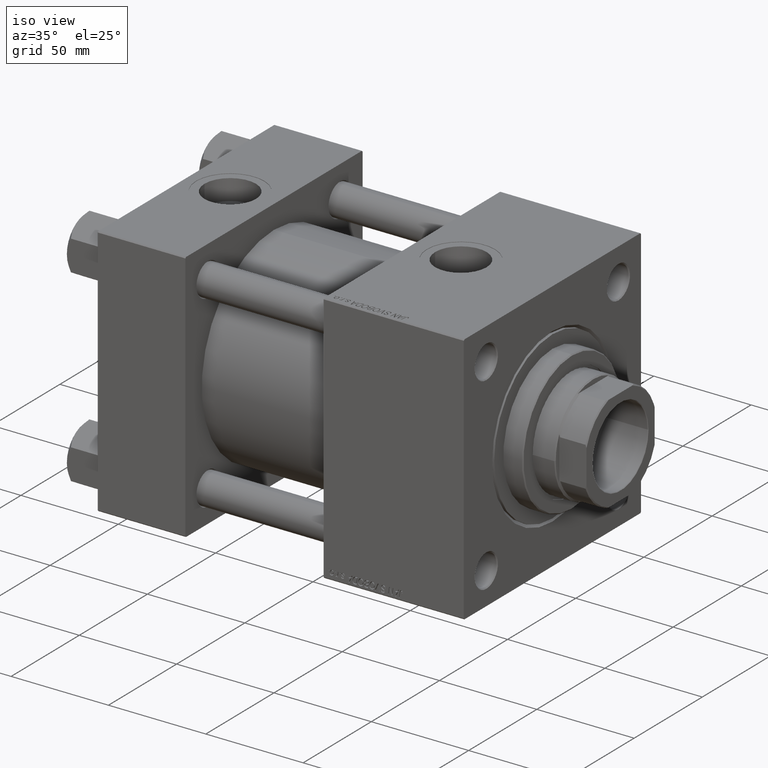
[diagram: clean part render]
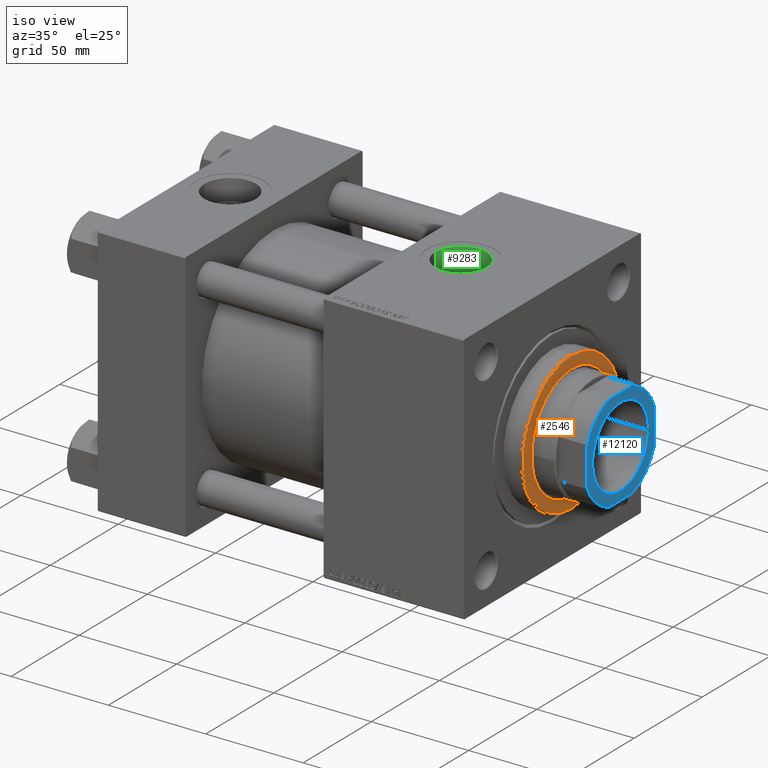
[diagram: same view with three faces highlighted in distinct colors, each labeled with its STEP entity id]
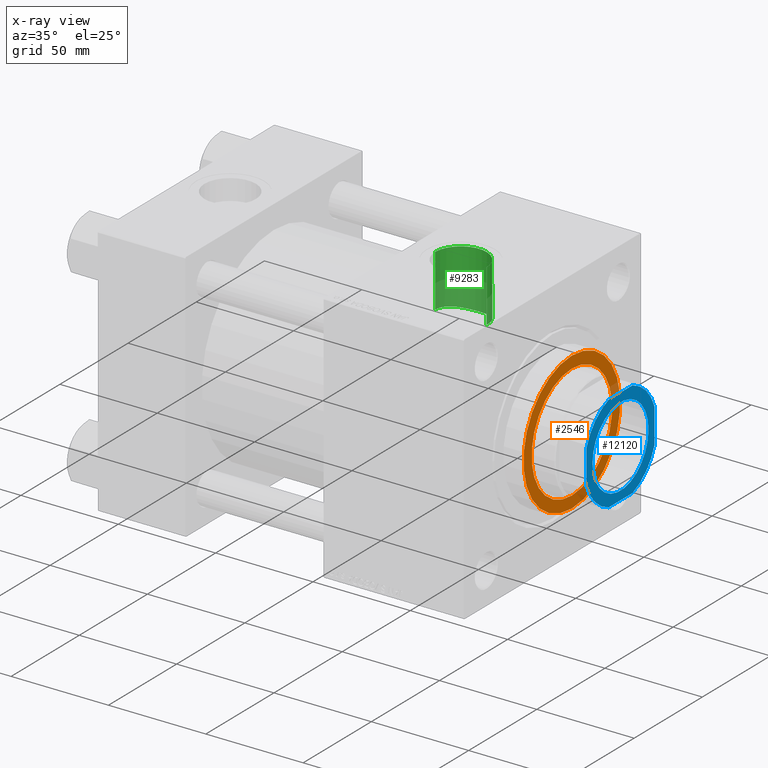
[diagram: x-ray of the same camera — body ghosted, the three highlighted faces saturated]
A machine part, iso view with three faces highlighted in distinct colors.
The next image is the same camera in x-ray (body ghosted, the three faces saturated) — at least one of them is partly hidden behind the body in this view.
Their STEP definitions:

[orange] entity #2546 — the highlighted planar face has unit normal (1, 0, 0).
#324 = PLANE ( 'NONE',  #50547 ) ;
#612 = AXIS2_PLACEMENT_3D ( 'NONE', #38862, #42329, #23228 ) ;
#2546 = ADVANCED_FACE ( 'NONE', ( #44887, #24230 ), #324, .T. ) ;
#6545 = CIRCLE ( 'NONE', #612, 29.50000000000000355 ) ;
#8170 = ORIENTED_EDGE ( 'NONE', *, *, #49048, .F. ) ;
#8738 = ORIENTED_EDGE ( 'NONE', *, *, #47804, .T. ) ;
#9497 = DIRECTION ( 'NONE',  ( 0.000000000000000000, 0.000000000000000000, 1.000000000000000000 ) ) ;
#11150 = EDGE_LOOP ( 'NONE', ( #8170, #31757 ) ) ;
#14233 = CARTESIAN_POINT ( 'NONE',  ( 29.50000000000000355, 0.000000000000000000, 38.69999999999999574 ) ) ;
#16473 = VERTEX_POINT ( 'NONE', #31419 ) ;
#16533 = DIRECTION ( 'NONE',  ( 0.000000000000000000, 0.000000000000000000, 1.000000000000000000 ) ) ;
#16804 = CARTESIAN_POINT ( 'NONE',  ( 0.000000000000000000, 0.000000000000000000, 38.69999999999999574 ) ) ;
#17727 = VERTEX_POINT ( 'NONE', #43572 ) ;
#21761 = DIRECTION ( 'NONE',  ( 1.000000000000000000, 0.000000000000000000, 0.000000000000000000 ) ) ;
#22211 = DIRECTION ( 'NONE',  ( 1.000000000000000000, 0.000000000000000000, 0.000000000000000000 ) ) ;
#22859 = CIRCLE ( 'NONE', #52474, 35.49999999999999289 ) ;
#22867 = VERTEX_POINT ( 'NONE', #14233 ) ;
#23228 = DIRECTION ( 'NONE',  ( 1.000000000000000000, 0.000000000000000000, 0.000000000000000000 ) ) ;
#23559 = AXIS2_PLACEMENT_3D ( 'NONE', #27036, #43198, #21761 ) ;
#24230 = FACE_OUTER_BOUND ( 'NONE', #50483, .T. ) ;
#25874 = CARTESIAN_POINT ( 'NONE',  ( 0.000000000000000000, 0.000000000000000000, 38.69999999999999574 ) ) ;
#27036 = CARTESIAN_POINT ( 'NONE',  ( 0.000000000000000000, 0.000000000000000000, 38.69999999999999574 ) ) ;
#27742 = CIRCLE ( 'NONE', #39585, 35.49999999999999289 ) ;
#31419 = CARTESIAN_POINT ( 'NONE',  ( -29.50000000000000355, 3.612708057484692393E-15, 38.69999999999999574 ) ) ;
#31757 = ORIENTED_EDGE ( 'NONE', *, *, #50803, .F. ) ;
#32434 = DIRECTION ( 'NONE',  ( 1.000000000000000000, 0.000000000000000000, -0.000000000000000000 ) ) ;
#32991 = ORIENTED_EDGE ( 'NONE', *, *, #35148, .T. ) ;
#35148 = EDGE_CURVE ( 'NONE', #45041, #17727, #22859, .T. ) ;
#38070 = DIRECTION ( 'NONE',  ( 1.000000000000000000, 0.000000000000000000, 0.000000000000000000 ) ) ;
#38634 = CARTESIAN_POINT ( 'NONE',  ( 0.000000000000000000, 0.000000000000000000, 38.69999999999999574 ) ) ;
#38862 = CARTESIAN_POINT ( 'NONE',  ( 0.000000000000000000, 0.000000000000000000, 38.69999999999999574 ) ) ;
#39585 = AXIS2_PLACEMENT_3D ( 'NONE', #38634, #9497, #22211 ) ;
#42329 = DIRECTION ( 'NONE',  ( 0.000000000000000000, 0.000000000000000000, 1.000000000000000000 ) ) ;
#43198 = DIRECTION ( 'NONE',  ( 0.000000000000000000, 0.000000000000000000, 1.000000000000000000 ) ) ;
#43572 = CARTESIAN_POINT ( 'NONE',  ( -35.49999999999999289, 0.000000000000000000, 38.69999999999999574 ) ) ;
#43848 = CIRCLE ( 'NONE', #23559, 29.50000000000000355 ) ;
#44887 = FACE_BOUND ( 'NONE', #11150, .T. ) ;
#45041 = VERTEX_POINT ( 'NONE', #49753 ) ;
#47804 = EDGE_CURVE ( 'NONE', #17727, #45041, #27742, .T. ) ;
#49048 = EDGE_CURVE ( 'NONE', #22867, #16473, #43848, .T. ) ;
#49753 = CARTESIAN_POINT ( 'NONE',  ( 35.49999999999999289, 4.378112306951787069E-15, 38.69999999999999574 ) ) ;
#50483 = EDGE_LOOP ( 'NONE', ( #8738, #32991 ) ) ;
#50547 = AXIS2_PLACEMENT_3D ( 'NONE', #16804, #16533, #32434 ) ;
#50803 = EDGE_CURVE ( 'NONE', #16473, #22867, #6545, .T. ) ;
#51022 = DIRECTION ( 'NONE',  ( 0.000000000000000000, 0.000000000000000000, 1.000000000000000000 ) ) ;
#52474 = AXIS2_PLACEMENT_3D ( 'NONE', #25874, #51022, #38070 ) ;

[blue] entity #12120 — the highlighted planar face has unit normal (1, 0, 0).
#237 = DIRECTION ( 'NONE',  ( 1.000000000000000000, 0.000000000000000000, 0.000000000000000000 ) ) ;
#381 = CIRCLE ( 'NONE', #52072, 20.55000000000001137 ) ;
#1189 = VERTEX_POINT ( 'NONE', #15551 ) ;
#1682 = LINE ( 'NONE', #33521, #14384 ) ;
#2638 = EDGE_CURVE ( 'NONE', #13242, #49820, #39574, .T. ) ;
#3856 = CARTESIAN_POINT ( 'NONE',  ( -24.99999999999999289, -25.00000000000000000, 178.0000000000000284 ) ) ;
#4932 = PLANE ( 'NONE',  #13571 ) ;
#5129 = VERTEX_POINT ( 'NONE', #7317 ) ;
#5443 = VERTEX_POINT ( 'NONE', #32979 ) ;
#5547 = EDGE_LOOP ( 'NONE', ( #17111, #44808 ) ) ;
#7317 = CARTESIAN_POINT ( 'NONE',  ( -20.55000000000001137, 2.516649172247812343E-15, 178.0000000000000284 ) ) ;
#8425 = CARTESIAN_POINT ( 'NONE',  ( 25.00000000000000355, -8.789197915623526924, 178.0000000000000284 ) ) ;
#8914 = FACE_BOUND ( 'NONE', #5547, .T. ) ;
#9175 = EDGE_CURVE ( 'NONE', #51302, #1189, #45245, .T. ) ;
#9992 = AXIS2_PLACEMENT_3D ( 'NONE', #33147, #45592, #237 ) ;
#10957 = CARTESIAN_POINT ( 'NONE',  ( -8.789197915623482515, -25.00000000000000000, 178.0000000000000284 ) ) ;
#11682 = CARTESIAN_POINT ( 'NONE',  ( 25.00000000000000000, 25.00000000000000000, 178.0000000000000284 ) ) ;
#11708 = EDGE_CURVE ( 'NONE', #27220, #39073, #1682, .T. ) ;
#12120 = ADVANCED_FACE ( 'NONE', ( #8914, #33070 ), #4932, .T. ) ;
#12738 = ORIENTED_EDGE ( 'NONE', *, *, #42213, .T. ) ;
#13053 = ORIENTED_EDGE ( 'NONE', *, *, #9175, .T. ) ;
#13162 = DIRECTION ( 'NONE',  ( 1.000000000000000000, 0.000000000000000000, 0.000000000000000000 ) ) ;
#13242 = VERTEX_POINT ( 'NONE', #49844 ) ;
#13571 = AXIS2_PLACEMENT_3D ( 'NONE', #24849, #44440, #28542 ) ;
#14107 = ORIENTED_EDGE ( 'NONE', *, *, #27396, .T. ) ;
#14384 = VECTOR ( 'NONE', #17891, 1000.000000000000000 ) ;
#14866 = VERTEX_POINT ( 'NONE', #28123 ) ;
#15059 = DIRECTION ( 'NONE',  ( 1.000000000000000000, 0.000000000000000000, 0.000000000000000000 ) ) ;
#15551 = CARTESIAN_POINT ( 'NONE',  ( -24.99999999999999645, -8.789197915623496726, 178.0000000000000284 ) ) ;
#16093 = VECTOR ( 'NONE', #44721, 1000.000000000000000 ) ;
#16544 = CIRCLE ( 'NONE', #41100, 26.50000000000000711 ) ;
#16552 = ORIENTED_EDGE ( 'NONE', *, *, #11708, .T. ) ;
#17111 = ORIENTED_EDGE ( 'NONE', *, *, #40891, .T. ) ;
#17575 = CARTESIAN_POINT ( 'NONE',  ( -8.789197915623342183, 25.00000000000000000, 178.0000000000000284 ) ) ;
#17891 = DIRECTION ( 'NONE',  ( -1.000000000000000000, -0.000000000000000000, -0.000000000000000000 ) ) ;
#18923 = ORIENTED_EDGE ( 'NONE', *, *, #39260, .T. ) ;
#19057 = ORIENTED_EDGE ( 'NONE', *, *, #2638, .T. ) ;
#19895 = DIRECTION ( 'NONE',  ( -1.387778780781445676E-16, 1.000000000000000000, -0.000000000000000000 ) ) ;
#19989 = ORIENTED_EDGE ( 'NONE', *, *, #44901, .T. ) ;
#20840 = CIRCLE ( 'NONE', #23388, 26.50000000000002842 ) ;
#20854 = DIRECTION ( 'NONE',  ( -0.000000000000000000, 0.000000000000000000, 1.000000000000000000 ) ) ;
#21139 = DIRECTION ( 'NONE',  ( -0.000000000000000000, 0.000000000000000000, 1.000000000000000000 ) ) ;
#21324 = DIRECTION ( 'NONE',  ( -0.000000000000000000, 0.000000000000000000, 1.000000000000000000 ) ) ;
#22097 = DIRECTION ( 'NONE',  ( 1.000000000000000000, 0.000000000000000000, 0.000000000000000000 ) ) ;
#23388 = AXIS2_PLACEMENT_3D ( 'NONE', #43383, #47093, #43635 ) ;
#24189 = CARTESIAN_POINT ( 'NONE',  ( -24.99999999999999645, 8.789197915623349289, 178.0000000000000284 ) ) ;
#24542 = VECTOR ( 'NONE', #19895, 1000.000000000000000 ) ;
#24849 = CARTESIAN_POINT ( 'NONE',  ( 0.000000000000000000, 0.000000000000000000, 178.0000000000000284 ) ) ;
#24950 = DIRECTION ( 'NONE',  ( 1.000000000000000000, 0.000000000000000000, 0.000000000000000000 ) ) ;
#25101 = CARTESIAN_POINT ( 'NONE',  ( 0.000000000000000000, 0.000000000000000000, 178.0000000000000284 ) ) ;
#27220 = VERTEX_POINT ( 'NONE', #32547 ) ;
#27396 = EDGE_CURVE ( 'NONE', #5443, #27220, #20840, .T. ) ;
#28022 = LINE ( 'NONE', #3856, #48813 ) ;
#28123 = CARTESIAN_POINT ( 'NONE',  ( 20.55000000000001137, 0.000000000000000000, 178.0000000000000284 ) ) ;
#28542 = DIRECTION ( 'NONE',  ( 1.000000000000000000, 0.000000000000000000, 0.000000000000000000 ) ) ;
#32547 = CARTESIAN_POINT ( 'NONE',  ( 8.789197915623548241, 25.00000000000000000, 178.0000000000000284 ) ) ;
#32847 = CIRCLE ( 'NONE', #9992, 20.55000000000001137 ) ;
#32979 = CARTESIAN_POINT ( 'NONE',  ( 25.00000000000000355, 8.789197915623548241, 178.0000000000000284 ) ) ;
#33070 = FACE_OUTER_BOUND ( 'NONE', #50652, .T. ) ;
#33147 = CARTESIAN_POINT ( 'NONE',  ( 0.000000000000000000, 0.000000000000000000, 178.0000000000000284 ) ) ;
#33521 = CARTESIAN_POINT ( 'NONE',  ( -25.00000000000000000, 25.00000000000000000, 178.0000000000000284 ) ) ;
#33603 = CARTESIAN_POINT ( 'NONE',  ( -25.00000000000000000, 25.00000000000000000, 178.0000000000000284 ) ) ;
#37062 = VERTEX_POINT ( 'NONE', #10957 ) ;
#39073 = VERTEX_POINT ( 'NONE', #17575 ) ;
#39260 = EDGE_CURVE ( 'NONE', #49820, #5443, #51968, .T. ) ;
#39574 = CIRCLE ( 'NONE', #48043, 26.50000000000002487 ) ;
#40891 = EDGE_CURVE ( 'NONE', #14866, #5129, #381, .T. ) ;
#41100 = AXIS2_PLACEMENT_3D ( 'NONE', #45490, #20854, #13162 ) ;
#41719 = CARTESIAN_POINT ( 'NONE',  ( 0.000000000000000000, 0.000000000000000000, 178.0000000000000284 ) ) ;
#42213 = EDGE_CURVE ( 'NONE', #1189, #37062, #16544, .T. ) ;
#43383 = CARTESIAN_POINT ( 'NONE',  ( 0.000000000000000000, 0.000000000000000000, 178.0000000000000284 ) ) ;
#43635 = DIRECTION ( 'NONE',  ( 1.000000000000000000, 0.000000000000000000, 0.000000000000000000 ) ) ;
#44440 = DIRECTION ( 'NONE',  ( -0.000000000000000000, 0.000000000000000000, 1.000000000000000000 ) ) ;
#44562 = CIRCLE ( 'NONE', #47976, 26.49999999999995737 ) ;
#44721 = DIRECTION ( 'NONE',  ( 1.387778780781445676E-16, -1.000000000000000000, 0.000000000000000000 ) ) ;
#44808 = ORIENTED_EDGE ( 'NONE', *, *, #52307, .T. ) ;
#44901 = EDGE_CURVE ( 'NONE', #37062, #13242, #28022, .T. ) ;
#44992 = EDGE_CURVE ( 'NONE', #39073, #51302, #44562, .T. ) ;
#44996 = ORIENTED_EDGE ( 'NONE', *, *, #44992, .T. ) ;
#45245 = LINE ( 'NONE', #33603, #16093 ) ;
#45490 = CARTESIAN_POINT ( 'NONE',  ( 0.000000000000000000, 0.000000000000000000, 178.0000000000000284 ) ) ;
#45495 = DIRECTION ( 'NONE',  ( 1.000000000000000000, 0.000000000000000000, 0.000000000000000000 ) ) ;
#45592 = DIRECTION ( 'NONE',  ( 0.000000000000000000, -0.000000000000000000, -1.000000000000000000 ) ) ;
#45887 = CARTESIAN_POINT ( 'NONE',  ( 0.000000000000000000, 0.000000000000000000, 178.0000000000000284 ) ) ;
#47093 = DIRECTION ( 'NONE',  ( -0.000000000000000000, 0.000000000000000000, 1.000000000000000000 ) ) ;
#47976 = AXIS2_PLACEMENT_3D ( 'NONE', #25101, #21139, #45495 ) ;
#48043 = AXIS2_PLACEMENT_3D ( 'NONE', #41719, #21324, #22097 ) ;
#48813 = VECTOR ( 'NONE', #15059, 1000.000000000000000 ) ;
#49820 = VERTEX_POINT ( 'NONE', #8425 ) ;
#49844 = CARTESIAN_POINT ( 'NONE',  ( 8.789197915623537583, -25.00000000000000000, 178.0000000000000284 ) ) ;
#49876 = DIRECTION ( 'NONE',  ( 0.000000000000000000, -0.000000000000000000, -1.000000000000000000 ) ) ;
#50652 = EDGE_LOOP ( 'NONE', ( #18923, #14107, #16552, #44996, #13053, #12738, #19989, #19057 ) ) ;
#51302 = VERTEX_POINT ( 'NONE', #24189 ) ;
#51968 = LINE ( 'NONE', #11682, #24542 ) ;
#52072 = AXIS2_PLACEMENT_3D ( 'NONE', #45887, #49876, #24950 ) ;
#52307 = EDGE_CURVE ( 'NONE', #5129, #14866, #32847, .T. ) ;

[green] entity #9283 — the highlighted cylindrical surface (edge-blend (fillet) strip) has radius 13.22 mm, axis along (0, 0, -1).
#2175 = CARTESIAN_POINT ( 'NONE',  ( 130.5179717653578564, 8.067297229285003368, 37.13536307982790419 ) ) ;
#2493 = VERTEX_POINT ( 'NONE', #14978 ) ;
#2703 = CARTESIAN_POINT ( 'NONE',  ( 137.5510121136261716, 12.76956304801074893, 35.79045134290792873 ) ) ;
#2954 = CARTESIAN_POINT ( 'NONE',  ( 136.7198229646095058, 12.51548410662532262, 35.88008926052150116 ) ) ;
#3222 = CARTESIAN_POINT ( 'NONE',  ( 142.7411790004790362, 13.11220173154227631, 35.66612258557778148 ) ) ;
#5413 = CARTESIAN_POINT ( 'NONE',  ( 127.7799999999999443, -6.938893903907228378E-15, 87.79999999999998295 ) ) ;
#6154 = CARTESIAN_POINT ( 'NONE',  ( 152.4441171261258603, 6.632442103193162630, 37.41872950482504478 ) ) ;
#6410 = CARTESIAN_POINT ( 'NONE',  ( 128.4829040024936262, 4.275619610292558548, 37.76102357344350224 ) ) ;
#6684 = CARTESIAN_POINT ( 'NONE',  ( 137.9783248740371562, 12.87741840668324755, 35.75164858336053442 ) ) ;
#6943 = CARTESIAN_POINT ( 'NONE',  ( 149.0597952669006645, 10.48780214910943087, 36.52515251149306152 ) ) ;
#7202 = CARTESIAN_POINT ( 'NONE',  ( 130.2581494856536608, 7.717952606587443753, 37.20976185416888171 ) ) ;
#7231 = B_SPLINE_CURVE_WITH_KNOTS ( 'NONE', 3,
 ( #42763, #47780, #35600, #26601, #47266, #6410, #27638, #18917, #30836, #7202, #2175, #51239, #43029, #34816, #14674, #15205, #11469, #27140, #2954, #2703, #6684, #43290, #10429, #34551, #18668, #3222, #30587, #51508, #46743, #39055, #18397, #51771, #11217, #50724, #6943, #14425, #26863, #43543, #31370, #35070, #6154, #15463, #50983, #22360, #39310, #47526, #19174, #19443, #38793, #10692 ),
 .UNSPECIFIED., .F., .F.,
 ( 4, 2, 2, 2, 2, 2, 2, 2, 2, 2, 2, 2, 2, 2, 2, 2, 2, 2, 2, 2, 2, 2, 2, 2, 4 ),
 ( 9.821492408605553290E-18, 0.002603758523713354221, 0.003905637785570026561, 0.005207517047426698034, 0.007811275571140042714, 0.009113154832996715055, 0.01041503409485338393, 0.01301879261856672340, 0.01562255114228006635, 0.01692443040413677338, 0.01822630966599348215, 0.02083006818970689969, 0.02213194745156365009, 0.02343382671342040049, 0.02603758523713381803, 0.02733946449899052680, 0.02864134376084723557, 0.02994322302270394434, 0.03124510228456065311, 0.03384886080827412269, 0.03515074007013083146, 0.03645261933198754023, 0.03905637785570093001, 0.04035825711755762490, 0.04166013637941431980 ),
 .UNSPECIFIED. ) ;
#8372 = CARTESIAN_POINT ( 'NONE',  ( 154.2199999999999704, -5.319910835434425649E-15, 87.79999999999998295 ) ) ;
#9283 = ADVANCED_FACE ( 'NONE', ( #37838 ), #10252, .F. ) ;
#9501 = AXIS2_PLACEMENT_3D ( 'NONE', #43320, #51797, #36126 ) ;
#10252 = CYLINDRICAL_SURFACE ( 'NONE', #17729, 13.22000000000000952 ) ;
#10254 = CARTESIAN_POINT ( 'NONE',  ( 154.2199999999999704, 4.637117530598473618E-15, 38.00000000000000000 ) ) ;
#10429 = CARTESIAN_POINT ( 'NONE',  ( 140.1231224348014734, 13.21954961325434930, 35.62644394619942290 ) ) ;
#10439 = EDGE_CURVE ( 'NONE', #42873, #45927, #16577, .T. ) ;
#10692 = CARTESIAN_POINT ( 'NONE',  ( 154.2199999999999704, 4.637117530598473618E-15, 38.00000000000000000 ) ) ;
#11217 = CARTESIAN_POINT ( 'NONE',  ( 148.0027169935828226, 11.22114948790769340, 36.30630745329622044 ) ) ;
#11469 = CARTESIAN_POINT ( 'NONE',  ( 135.1229592219934830, 11.87300953878870224, 36.09921826543392598 ) ) ;
#11755 = EDGE_CURVE ( 'NONE', #45927, #22848, #7231, .T. ) ;
#14425 = CARTESIAN_POINT ( 'NONE',  ( 149.7260341709668410, 9.940353178350278540, 36.67792440414743993 ) ) ;
#14502 = DIRECTION ( 'NONE',  ( 0.000000000000000000, 0.000000000000000000, -1.000000000000000000 ) ) ;
#14635 = EDGE_CURVE ( 'NONE', #42873, #2493, #39986, .T. ) ;
#14674 = CARTESIAN_POINT ( 'NONE',  ( 132.9228576520917500, 10.50150736000390594, 36.52359369048335225 ) ) ;
#14978 = CARTESIAN_POINT ( 'NONE',  ( 154.2199999999999704, -5.319910835434425649E-15, 64.79999999999999716 ) ) ;
#15205 = CARTESIAN_POINT ( 'NONE',  ( 134.3653591427861045, 11.46749432249161060, 36.23190757969214815 ) ) ;
#15463 = CARTESIAN_POINT ( 'NONE',  ( 152.8548370452559766, 5.866851257627189398, 37.54638014946782931 ) ) ;
#16577 = LINE ( 'NONE', #5413, #28705 ) ;
#16615 = DIRECTION ( 'NONE',  ( 0.000000000000000000, 0.000000000000000000, -1.000000000000000000 ) ) ;
#17729 = AXIS2_PLACEMENT_3D ( 'NONE', #50287, #14502, #21672 ) ;
#18397 = CARTESIAN_POINT ( 'NONE',  ( 146.8759488656017425, 11.85019929918945003, 36.10565939769487898 ) ) ;
#18668 = CARTESIAN_POINT ( 'NONE',  ( 141.8665136838928902, 13.19888982437523062, 35.63413310215538843 ) ) ;
#18917 = CARTESIAN_POINT ( 'NONE',  ( 129.1315051996629109, 5.887014369330772823, 37.54987859330148581 ) ) ;
#19136 = EDGE_LOOP ( 'NONE', ( #44971, #44913, #20073, #22315 ) ) ;
#19174 = CARTESIAN_POINT ( 'NONE',  ( 154.1128413681229574, 1.735479151958573496, 37.96283165320696185 ) ) ;
#19443 = CARTESIAN_POINT ( 'NONE',  ( 154.1986957026343248, 0.8677144586217341304, 37.99257225609915167 ) ) ;
#20073 = ORIENTED_EDGE ( 'NONE', *, *, #10439, .T. ) ;
#21100 = DIRECTION ( 'NONE',  ( 0.000000000000000000, 0.000000000000000000, -1.000000000000000000 ) ) ;
#21672 = DIRECTION ( 'NONE',  ( -1.000000000000000000, 0.000000000000000000, 0.000000000000000000 ) ) ;
#22315 = ORIENTED_EDGE ( 'NONE', *, *, #11755, .T. ) ;
#22360 = CARTESIAN_POINT ( 'NONE',  ( 153.5366798805274300, 4.282859083305094572, 37.76641143626166297 ) ) ;
#22848 = VERTEX_POINT ( 'NONE', #10254 ) ;
#26601 = CARTESIAN_POINT ( 'NONE',  ( 128.1223493879207069, 3.020305027459333491, 37.88217384615143857 ) ) ;
#26863 = CARTESIAN_POINT ( 'NONE',  ( 150.0478526938749440, 9.648284538190594617, 36.75607350545605101 ) ) ;
#27140 = CARTESIAN_POINT ( 'NONE',  ( 136.3137578745026985, 12.36901069992441649, 35.93101797926210850 ) ) ;
#27638 = CARTESIAN_POINT ( 'NONE',  ( 128.6316549004498881, 4.688269003696322379, 37.71183784818870777 ) ) ;
#28705 = VECTOR ( 'NONE', #21100, 1000.000000000000000 ) ;
#29333 = LINE ( 'NONE', #8372, #51355 ) ;
#30587 = CARTESIAN_POINT ( 'NONE',  ( 143.1724207100428714, 13.04749915800877247, 35.68992844076441173 ) ) ;
#30836 = CARTESIAN_POINT ( 'NONE',  ( 129.5383319103436861, 6.643910312679101260, 37.42180025711005698 ) ) ;
#31370 = CARTESIAN_POINT ( 'NONE',  ( 151.5017467613239717, 8.075953653681521516, 37.13904836715889957 ) ) ;
#34452 = CARTESIAN_POINT ( 'NONE',  ( 127.7799999999999443, -6.938893903907228378E-15, 64.79999999999999716 ) ) ;
#34551 = CARTESIAN_POINT ( 'NONE',  ( 141.4282138457147653, 13.22022255723210726, 35.62619423394109219 ) ) ;
#34816 = CARTESIAN_POINT ( 'NONE',  ( 132.2615255553946838, 9.956844915738765067, 36.67765109368121301 ) ) ;
#35070 = CARTESIAN_POINT ( 'NONE',  ( 152.2199648555973965, 7.004685342897822409, 37.35059395117617953 ) ) ;
#35600 = CARTESIAN_POINT ( 'NONE',  ( 127.8671564419364159, 1.745775203784189822, 37.96943007227788769 ) ) ;
#36126 = DIRECTION ( 'NONE',  ( 1.000000000000000000, 0.000000000000000000, 0.000000000000000000 ) ) ;
#37838 = FACE_OUTER_BOUND ( 'NONE', #19136, .T. ) ;
#38793 = CARTESIAN_POINT ( 'NONE',  ( 154.2199999999999989, 0.4338489319032953762, 38.00000000000000000 ) ) ;
#39055 = CARTESIAN_POINT ( 'NONE',  ( 146.4833383211347666, 12.03708152201897263, 36.04358405756305928 ) ) ;
#39310 = CARTESIAN_POINT ( 'NONE',  ( 153.7897855267026159, 3.457401718277501868, 37.85213484517537808 ) ) ;
#39986 = CIRCLE ( 'NONE', #9501, 13.22000000000000952 ) ;
#42763 = CARTESIAN_POINT ( 'NONE',  ( 127.7799999999999443, -1.705649605790996834E-14, 38.00000000000000000 ) ) ;
#42873 = VERTEX_POINT ( 'NONE', #34452 ) ;
#43029 = CARTESIAN_POINT ( 'NONE',  ( 131.3540566248468338, 9.050248641728710908, 36.90786111561275362 ) ) ;
#43290 = CARTESIAN_POINT ( 'NONE',  ( 139.2606549615781262, 13.13404661130391737, 35.65851854196495196 ) ) ;
#43320 = CARTESIAN_POINT ( 'NONE',  ( 140.9999999999999716, -6.938893903907228378E-15, 64.79999999999999716 ) ) ;
#43543 = CARTESIAN_POINT ( 'NONE',  ( 150.9590082830484903, 8.736422930351002591, 36.98740664950088330 ) ) ;
#44913 = ORIENTED_EDGE ( 'NONE', *, *, #14635, .F. ) ;
#44960 = EDGE_CURVE ( 'NONE', #2493, #22848, #29333, .T. ) ;
#44971 = ORIENTED_EDGE ( 'NONE', *, *, #44960, .F. ) ;
#45927 = VERTEX_POINT ( 'NONE', #51912 ) ;
#46743 = CARTESIAN_POINT ( 'NONE',  ( 145.2763299006697082, 12.53958234661981663, 35.87316556566649695 ) ) ;
#47266 = CARTESIAN_POINT ( 'NONE',  ( 128.2283167547283540, 3.441325666826114293, 37.84617684814301697 ) ) ;
#47526 = CARTESIAN_POINT ( 'NONE',  ( 154.0476655248205304, 2.172046147659011162, 37.94030377154567191 ) ) ;
#47780 = CARTESIAN_POINT ( 'NONE',  ( 127.7799999999998875, 0.8809058747663722766, 38.00000000000000000 ) ) ;
#50287 = CARTESIAN_POINT ( 'NONE',  ( 140.9999999999999716, -6.938893903907228378E-15, 87.79999999999998295 ) ) ;
#50724 = CARTESIAN_POINT ( 'NONE',  ( 148.7151108199543330, 10.74380315149196896, 36.45041632910706397 ) ) ;
#50983 = CARTESIAN_POINT ( 'NONE',  ( 153.0400342313086526, 5.476466177881665232, 37.60544504294064438 ) ) ;
#51239 = CARTESIAN_POINT ( 'NONE',  ( 131.0657546700080616, 8.732981748578039216, 36.98447654672535378 ) ) ;
#51355 = VECTOR ( 'NONE', #16615, 1000.000000000000000 ) ;
#51508 = CARTESIAN_POINT ( 'NONE',  ( 144.4486618690301043, 12.79172057980269095, 35.78274430712026799 ) ) ;
#51771 = CARTESIAN_POINT ( 'NONE',  ( 147.6350077836463583, 11.44249405560822019, 36.23693135131939158 ) ) ;
#51797 = DIRECTION ( 'NONE',  ( -0.000000000000000000, -0.000000000000000000, -1.000000000000000000 ) ) ;
#51912 = CARTESIAN_POINT ( 'NONE',  ( 127.7799999999999443, -1.705649605790996834E-14, 38.00000000000000000 ) ) ;